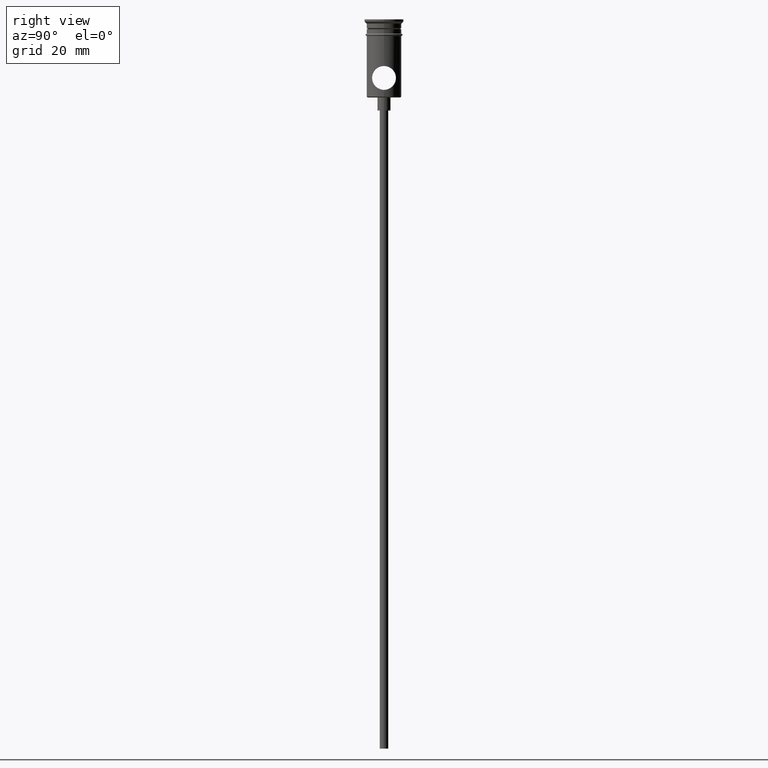
[diagram: clean part render]
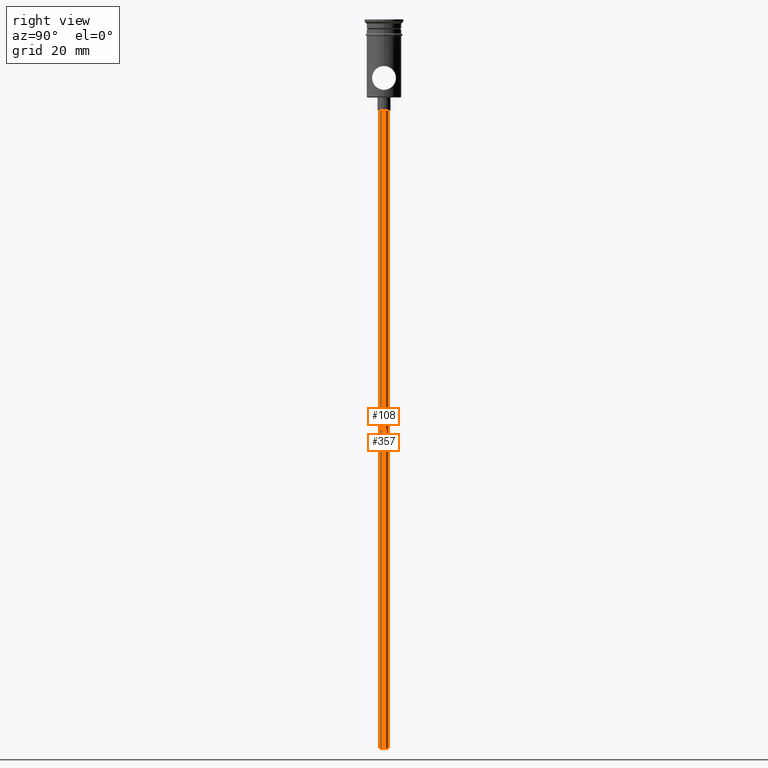
[diagram: same view with one multi-face feature highlighted, each face labeled with its STEP entity id]
A machine part, right view. The highlighted faces form ONE feature: a constant-radius fillet chain: 2 tangent blend faces with common blend radius 1 mm. The faces share edges in the B-rep.
Their STEP definitions:
[1] entity #357 (Cylinder):
#64 = DIRECTION ( 'NONE',  ( -0.000000000000000000, -0.000000000000000000, 1.000000000000000000 ) ) ;
#87 = CARTESIAN_POINT ( 'NONE',  ( -0.9999999999999997780, 1.224646799147352961E-16, -20.99999999999999645 ) ) ;
#99 = EDGE_CURVE ( 'NONE', #255, #880, #1234, .T. ) ;
#168 = DIRECTION ( 'NONE',  ( 0.000000000000000000, 0.000000000000000000, -1.000000000000000000 ) ) ;
#191 = EDGE_CURVE ( 'NONE', #1410, #831, #1236, .T. ) ;
#212 = EDGE_CURVE ( 'NONE', #831, #880, #654, .T. ) ;
#225 = CYLINDRICAL_SURFACE ( 'NONE', #1180, 0.9999999999999997780 ) ;
#255 = VERTEX_POINT ( 'NONE', #1301 ) ;
#256 = DIRECTION ( 'NONE',  ( -0.000000000000000000, -0.000000000000000000, 1.000000000000000000 ) ) ;
#271 = DIRECTION ( 'NONE',  ( 1.000000000000000000, 0.000000000000000000, 0.000000000000000000 ) ) ;
#277 = CARTESIAN_POINT ( 'NONE',  ( 0.000000000000000000, 0.000000000000000000, -20.99999999999999645 ) ) ;
#294 = CIRCLE ( 'NONE', #630, 0.9999999999999997780 ) ;
#323 = ORIENTED_EDGE ( 'NONE', *, *, #99, .F. ) ;
#345 = CARTESIAN_POINT ( 'NONE',  ( 0.000000000000000000, 0.000000000000000000, -167.9999999999999716 ) ) ;
#357 = ADVANCED_FACE ( 'NONE', ( #893 ), #225, .T. ) ;
#410 = DIRECTION ( 'NONE',  ( 0.000000000000000000, 0.000000000000000000, -1.000000000000000000 ) ) ;
#613 = DIRECTION ( 'NONE',  ( -1.000000000000000000, 0.000000000000000000, 0.000000000000000000 ) ) ;
#630 = AXIS2_PLACEMENT_3D ( 'NONE', #1399, #410, #613 ) ;
#632 = ORIENTED_EDGE ( 'NONE', *, *, #1137, .F. ) ;
#654 = CIRCLE ( 'NONE', #1084, 0.9999999999999997780 ) ;
#782 = DIRECTION ( 'NONE',  ( -0.000000000000000000, -0.000000000000000000, 1.000000000000000000 ) ) ;
#825 = DIRECTION ( 'NONE',  ( -1.000000000000000000, 0.000000000000000000, 0.000000000000000000 ) ) ;
#831 = VERTEX_POINT ( 'NONE', #87 ) ;
#880 = VERTEX_POINT ( 'NONE', #1113 ) ;
#893 = FACE_OUTER_BOUND ( 'NONE', #1155, .T. ) ;
#922 = CARTESIAN_POINT ( 'NONE',  ( -0.9999999999999997780, 1.224646799147352961E-16, -167.9999999999999716 ) ) ;
#1030 = CARTESIAN_POINT ( 'NONE',  ( 0.9999999999999997780, 0.000000000000000000, -167.9999999999999716 ) ) ;
#1037 = VECTOR ( 'NONE', #64, 1000.000000000000000 ) ;
#1084 = AXIS2_PLACEMENT_3D ( 'NONE', #277, #168, #825 ) ;
#1113 = CARTESIAN_POINT ( 'NONE',  ( 0.9999999999999997780, 0.000000000000000000, -20.99999999999999645 ) ) ;
#1137 = EDGE_CURVE ( 'NONE', #1410, #255, #294, .T. ) ;
#1155 = EDGE_LOOP ( 'NONE', ( #632, #1393, #1192, #323 ) ) ;
#1180 = AXIS2_PLACEMENT_3D ( 'NONE', #345, #782, #271 ) ;
#1192 = ORIENTED_EDGE ( 'NONE', *, *, #212, .T. ) ;
#1225 = VECTOR ( 'NONE', #256, 1000.000000000000000 ) ;
#1234 = LINE ( 'NONE', #1030, #1225 ) ;
#1235 = CARTESIAN_POINT ( 'NONE',  ( -0.9999999999999997780, 1.224646799147352961E-16, -167.9999999999999716 ) ) ;
#1236 = LINE ( 'NONE', #922, #1037 ) ;
#1301 = CARTESIAN_POINT ( 'NONE',  ( 0.9999999999999997780, 0.000000000000000000, -167.9999999999999716 ) ) ;
#1393 = ORIENTED_EDGE ( 'NONE', *, *, #191, .T. ) ;
#1399 = CARTESIAN_POINT ( 'NONE',  ( 0.000000000000000000, 0.000000000000000000, -167.9999999999999716 ) ) ;
#1410 = VERTEX_POINT ( 'NONE', #1235 ) ;
[2] entity #108 (Cylinder):
#35 = FACE_OUTER_BOUND ( 'NONE', #610, .T. ) ;
#57 = DIRECTION ( 'NONE',  ( -1.000000000000000000, 0.000000000000000000, 0.000000000000000000 ) ) ;
#64 = DIRECTION ( 'NONE',  ( -0.000000000000000000, -0.000000000000000000, 1.000000000000000000 ) ) ;
#87 = CARTESIAN_POINT ( 'NONE',  ( -0.9999999999999997780, 1.224646799147352961E-16, -20.99999999999999645 ) ) ;
#99 = EDGE_CURVE ( 'NONE', #255, #880, #1234, .T. ) ;
#108 = ADVANCED_FACE ( 'NONE', ( #35 ), #795, .T. ) ;
#139 = DIRECTION ( 'NONE',  ( 1.000000000000000000, 0.000000000000000000, 0.000000000000000000 ) ) ;
#191 = EDGE_CURVE ( 'NONE', #1410, #831, #1236, .T. ) ;
#255 = VERTEX_POINT ( 'NONE', #1301 ) ;
#256 = DIRECTION ( 'NONE',  ( -0.000000000000000000, -0.000000000000000000, 1.000000000000000000 ) ) ;
#311 = AXIS2_PLACEMENT_3D ( 'NONE', #356, #694, #1130 ) ;
#326 = ORIENTED_EDGE ( 'NONE', *, *, #692, .T. ) ;
#356 = CARTESIAN_POINT ( 'NONE',  ( 0.000000000000000000, 0.000000000000000000, -20.99999999999999645 ) ) ;
#361 = CIRCLE ( 'NONE', #955, 0.9999999999999997780 ) ;
#392 = ORIENTED_EDGE ( 'NONE', *, *, #191, .F. ) ;
#482 = DIRECTION ( 'NONE',  ( -0.000000000000000000, -0.000000000000000000, 1.000000000000000000 ) ) ;
#610 = EDGE_LOOP ( 'NONE', ( #392, #1379, #1063, #326 ) ) ;
#653 = EDGE_CURVE ( 'NONE', #255, #1410, #361, .T. ) ;
#672 = AXIS2_PLACEMENT_3D ( 'NONE', #1370, #482, #139 ) ;
#692 = EDGE_CURVE ( 'NONE', #880, #831, #911, .T. ) ;
#694 = DIRECTION ( 'NONE',  ( 0.000000000000000000, 0.000000000000000000, -1.000000000000000000 ) ) ;
#795 = CYLINDRICAL_SURFACE ( 'NONE', #672, 0.9999999999999997780 ) ;
#831 = VERTEX_POINT ( 'NONE', #87 ) ;
#880 = VERTEX_POINT ( 'NONE', #1113 ) ;
#911 = CIRCLE ( 'NONE', #311, 0.9999999999999997780 ) ;
#922 = CARTESIAN_POINT ( 'NONE',  ( -0.9999999999999997780, 1.224646799147352961E-16, -167.9999999999999716 ) ) ;
#955 = AXIS2_PLACEMENT_3D ( 'NONE', #1211, #1118, #57 ) ;
#1030 = CARTESIAN_POINT ( 'NONE',  ( 0.9999999999999997780, 0.000000000000000000, -167.9999999999999716 ) ) ;
#1037 = VECTOR ( 'NONE', #64, 1000.000000000000000 ) ;
#1063 = ORIENTED_EDGE ( 'NONE', *, *, #99, .T. ) ;
#1113 = CARTESIAN_POINT ( 'NONE',  ( 0.9999999999999997780, 0.000000000000000000, -20.99999999999999645 ) ) ;
#1118 = DIRECTION ( 'NONE',  ( 0.000000000000000000, 0.000000000000000000, -1.000000000000000000 ) ) ;
#1130 = DIRECTION ( 'NONE',  ( -1.000000000000000000, 0.000000000000000000, 0.000000000000000000 ) ) ;
#1211 = CARTESIAN_POINT ( 'NONE',  ( 0.000000000000000000, 0.000000000000000000, -167.9999999999999716 ) ) ;
#1225 = VECTOR ( 'NONE', #256, 1000.000000000000000 ) ;
#1234 = LINE ( 'NONE', #1030, #1225 ) ;
#1235 = CARTESIAN_POINT ( 'NONE',  ( -0.9999999999999997780, 1.224646799147352961E-16, -167.9999999999999716 ) ) ;
#1236 = LINE ( 'NONE', #922, #1037 ) ;
#1301 = CARTESIAN_POINT ( 'NONE',  ( 0.9999999999999997780, 0.000000000000000000, -167.9999999999999716 ) ) ;
#1370 = CARTESIAN_POINT ( 'NONE',  ( 0.000000000000000000, 0.000000000000000000, -167.9999999999999716 ) ) ;
#1379 = ORIENTED_EDGE ( 'NONE', *, *, #653, .F. ) ;
#1410 = VERTEX_POINT ( 'NONE', #1235 ) ;